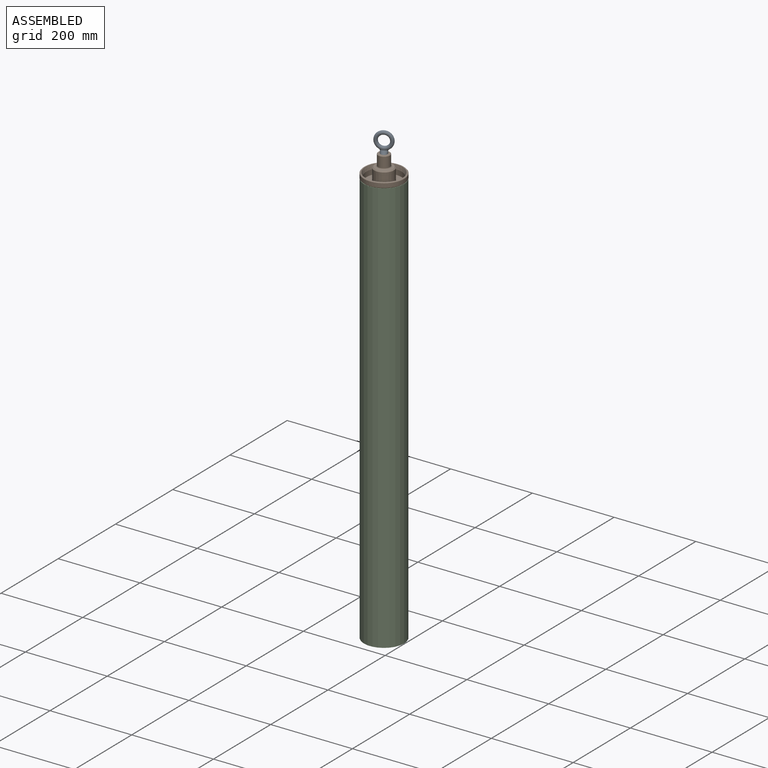
[diagram: assembled view]
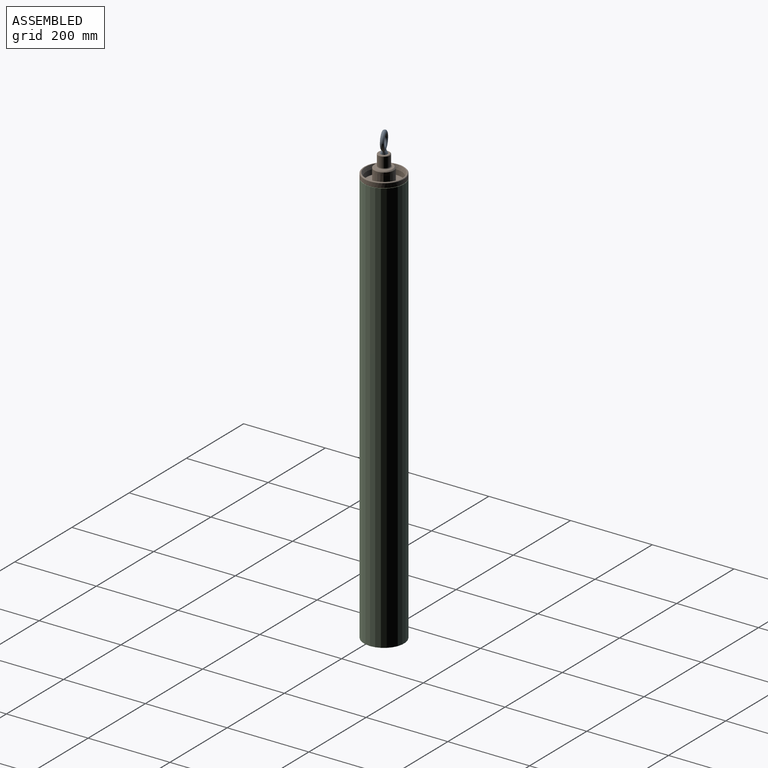
[diagram: assembled view, second angle]
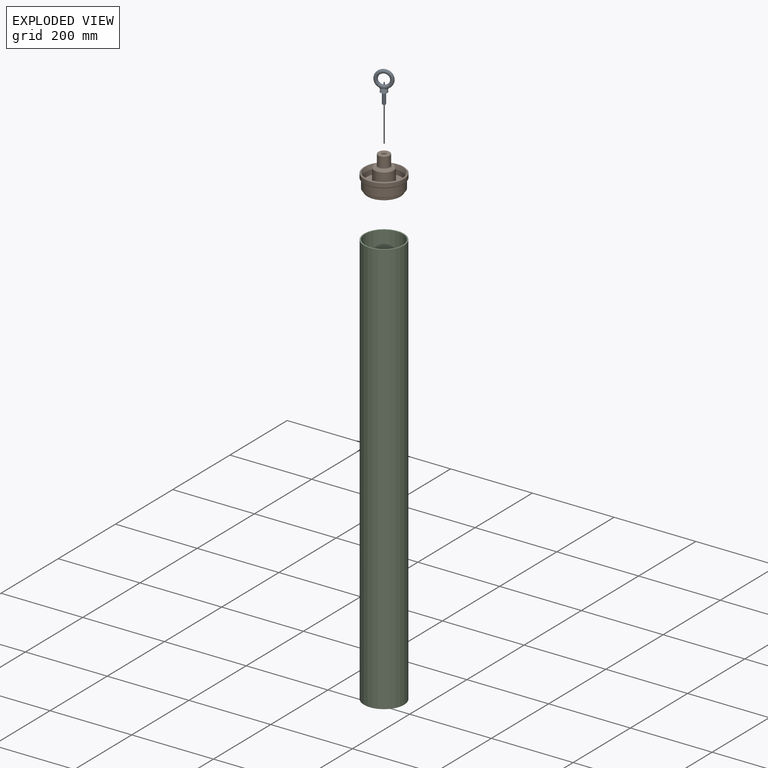
[diagram: exploded view]
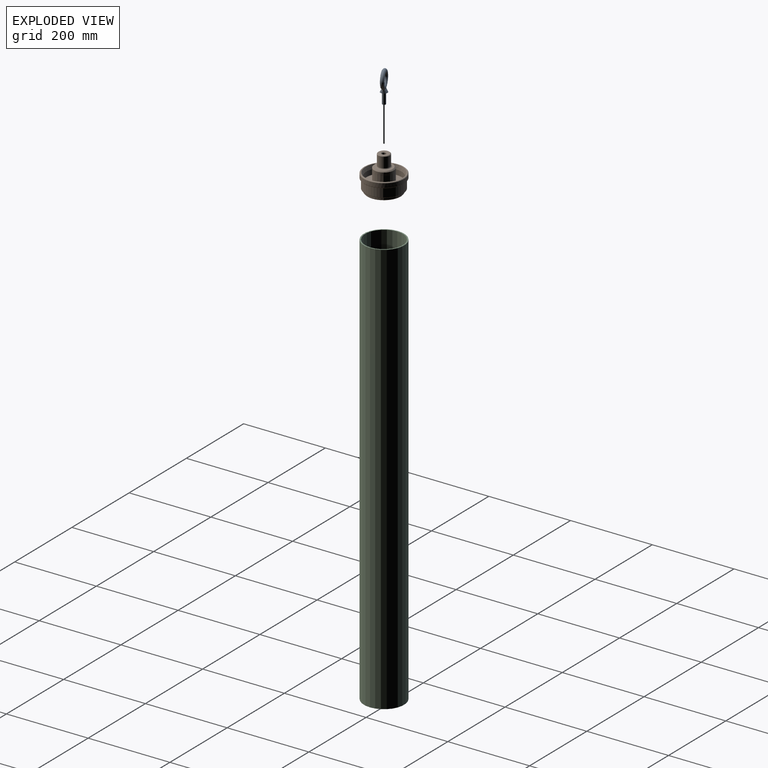
[diagram: exploded view, second angle]
ASSEMBLY  parts=3 mates=2
PART A: 8 faces, bbox 47.1x17x78.9 mm
  f0: extruded ~8.04x0.52mm, area 0mm2, adj f1,f4
  f1: bspline ~21.68x8.71mm, area 116.7mm2, adj f0,f2,f3,f4
  f2: torus R=17.22mm, axis (0,-1,0), area 2878.4mm2, adj f1
  f3: extruded ~8.04x0.52mm, area 0mm2, adj f1,f4
  f4: bspline ~17.02x17.02mm, area 369.1mm2, adj f0,f1,f3,f5
  f5: plane 17.02x17.02mm, normal (0,0,1), area 170.6mm2, adj f4,f6
  f6: cylinder r=4.25mm len=26.75mm, axis (0,0,-1), area 715mm2, adj f5,f7
  f7: plane 8.51x8.51mm, normal (0,0,1), area 56.9mm2, adj f6
PART B: 29 faces, bbox 98.3x98.3x85.2 mm
  f0: plane 80.98x80.98mm, normal (0,0,-1), area 3852.7mm2, adj f9,f13
  f1: cylinder r=41.76mm len=83.52mm, axis (0,0,-1), area 1512.8mm2, adj f2,f9
  f2: plane 89.97x89.97mm, normal (0,0,-1), area 879mm2, adj f1,f10
  f3: cylinder r=46.25mm len=92.51mm, axis (0,0,-1), area 6281.8mm2, adj f4,f10
  f4: plane 95.76x95.76mm, normal (0,0,-1), area 481.5mm2, adj f3,f7
  f5: cylinder r=49.15mm len=98.3mm, axis (0,0,-1), area 3161.9mm2, adj f7,f8
  f6: cone r=49.15mm half-angle=89.9deg, axis (0,0,1), area 694.6mm2, adj f8,f14
  f7: cone r=47.88mm half-angle=45deg, axis (0,0,1), area 546.4mm2, adj f4,f5
  f8: cone r=49.15mm half-angle=45.1deg, axis (0,0,-1), area 546.9mm2, adj f5,f6
  f9: cone r=40.49mm half-angle=45deg, axis (0,0,1), area 464.1mm2, adj f0,f1
  f10: cone r=44.98mm half-angle=45deg, axis (0,0,1), area 514.8mm2, adj f2,f3
  f11: cylinder r=19.05mm len=49.53mm, axis (0,0,-1), area 5928.5mm2, adj f12,f13
  f12: plane 38.1x38.1mm, normal (0,0,-1), area 1140.1mm2, adj f11
  f13: cone r=19.05mm half-angle=45deg, axis (0,0,-1), area 222.1mm2, adj f0,f11
  f14: cone r=45.51mm half-angle=14.8deg, axis (0,0,1), area 2750.3mm2, adj f6,f28
  f15: plane 9.96x9.96mm, normal (0,0,1), area 77.9mm2, adj f16
  f16: cylinder r=4.98mm len=25.4mm, axis (0,0,1), area 794.5mm2, adj f15,f17
  f17: cone r=4.98mm half-angle=45deg, axis (0,0,1), area 63.3mm2, adj f16,f18
  f18: plane 26.06x26.06mm, normal (0,0,1), area 410.7mm2, adj f17,f19
  f19: cone r=14.3mm half-angle=45deg, axis (0,0,-1), area 154.2mm2, adj f18,f20
  f20: cylinder r=14.3mm len=28.6mm, axis (0,0,-1), area 2277.7mm2, adj f19,f21
  f21: torus R=16.84mm, axis (0,0,1), area 381.6mm2, adj f20,f22
  f22: plane 42.68x42.68mm, normal (0,0,1), area 539.6mm2, adj f21,f23
  f23: cone r=23.88mm half-angle=45.1deg, axis (0,0,-1), area 510.9mm2, adj f22,f24
  f24: cone r=23.95mm half-angle=0.1deg, axis (0,0,-1), area 4771.2mm2, adj f23,f25
  f25: torus R=25.22mm, axis (0,0,-1), area 306mm2, adj f24,f26
  f26: cone r=23.95mm half-angle=89.9deg, axis (0,0,1), area 3667.9mm2, adj f25,f27
  f27: torus R=42.47mm, axis (0,0,-1), area 214.3mm2, adj f26,f28
  f28: cylinder r=42.98mm len=85.95mm, axis (0,0,-1), area 3269.6mm2, adj f14,f27
PART C: 4 faces, bbox 98.3x98.3x1016 mm
  f0: cylinder r=46.29mm len=1016mm, axis (0,0,-1), area 295511.8mm2, adj f2,f3
  f1: cylinder r=49.14mm len=1016mm, axis (0,0,-1), area 313672.2mm2, adj f2,f3
  f2: plane 98.27x98.27mm, normal (0,0,1), area 852.9mm2, adj f0,f1
  f3: plane 98.27x98.27mm, normal (0,0,-1), area 852.9mm2, adj f0,f1
PLACE A rot(axis=(0.2,-0.98,0),180deg) t=(137.28,0,1099.85)mm
PLACE B t=(137.28,0,986.08)mm
PLACE C t=(137.28,0,0)mm
MATE revolute B.f1 <-> A.f6  axis (0,0,1) through (137.28,0,1071.27)mm
MATE revolute B.f1 <-> C.f0  axis (0,0,-1) through (137.28,0,1016)mm
